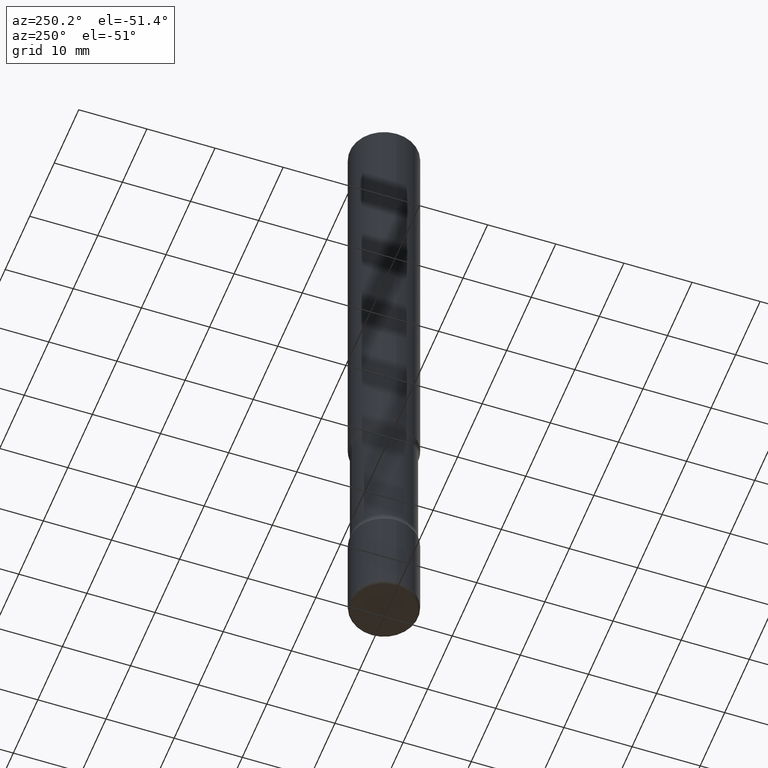
[diagram: clean part render]
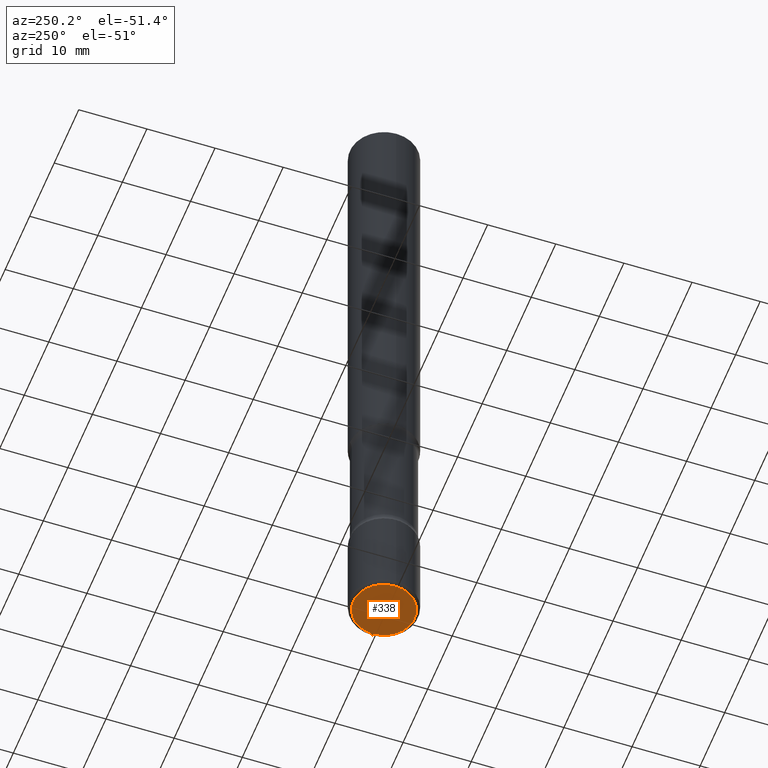
[diagram: same view with one face highlighted and labeled with its STEP entity id]
A machine part, auxiliary view. The second image highlights one B-rep face of the part: STEP entity #338.
In plain terms, the highlighted planar face has unit normal (0, -0, -1).
Its self-contained STEP definition (entity closure, byte-faithful):
#14 = CARTESIAN_POINT ( 'NONE',  ( 0.1771500000000001962, -1.498299386937758739E-14, -3.937000000000000277 ) ) ;
#38 = VERTEX_POINT ( 'NONE', #14 ) ;
#78 = ORIENTED_EDGE ( 'NONE', *, *, #416, .F. ) ;
#109 = FACE_OUTER_BOUND ( 'NONE', #255, .T. ) ;
#128 = DIRECTION ( 'NONE',  ( -2.445468806185136597E-29, 3.491481338843145583E-15, 1.000000000000000000 ) ) ;
#143 = DIRECTION ( 'NONE',  ( -2.445468806185136597E-29, 3.491481338843145583E-15, 1.000000000000000000 ) ) ;
#156 = ORIENTED_EDGE ( 'NONE', *, *, #174, .F. ) ;
#174 = EDGE_CURVE ( 'NONE', #551, #38, #473, .T. ) ;
#226 = CARTESIAN_POINT ( 'NONE',  ( -0.1771500000000001962, -1.238285602396647324E-14, -3.937000000000000277 ) ) ;
#238 = CARTESIAN_POINT ( 'NONE',  ( 9.627810689950883669E-29, -1.374596203102546341E-14, -3.937000000000000277 ) ) ;
#255 = EDGE_LOOP ( 'NONE', ( #78, #156 ) ) ;
#274 = CARTESIAN_POINT ( 'NONE',  ( 9.627810689950883669E-29, -1.374596203102546341E-14, -3.937000000000000277 ) ) ;
#278 = PLANE ( 'NONE',  #324 ) ;
#298 = CIRCLE ( 'NONE', #490, 0.1771500000000001962 ) ;
#324 = AXIS2_PLACEMENT_3D ( 'NONE', #238, #413, #368 ) ;
#338 = ADVANCED_FACE ( 'NONE', ( #109 ), #278, .T. ) ;
#368 = DIRECTION ( 'NONE',  ( -1.000000000000000000, 6.982962677686265922E-15, -4.876176775795935793E-29 ) ) ;
#413 = DIRECTION ( 'NONE',  ( 2.438088387897960049E-29, -3.491481338843145188E-15, -1.000000000000000000 ) ) ;
#416 = EDGE_CURVE ( 'NONE', #38, #551, #298, .T. ) ;
#435 = DIRECTION ( 'NONE',  ( 1.000000000000000000, -6.982962677686265133E-15, 0.000000000000000000 ) ) ;
#473 = CIRCLE ( 'NONE', #558, 0.1771500000000001962 ) ;
#489 = DIRECTION ( 'NONE',  ( 1.000000000000000000, -6.982962677686265133E-15, 0.000000000000000000 ) ) ;
#490 = AXIS2_PLACEMENT_3D ( 'NONE', #557, #128, #435 ) ;
#551 = VERTEX_POINT ( 'NONE', #226 ) ;
#557 = CARTESIAN_POINT ( 'NONE',  ( 9.627810689950883669E-29, -1.374596203102546341E-14, -3.937000000000000277 ) ) ;
#558 = AXIS2_PLACEMENT_3D ( 'NONE', #274, #143, #489 ) ;